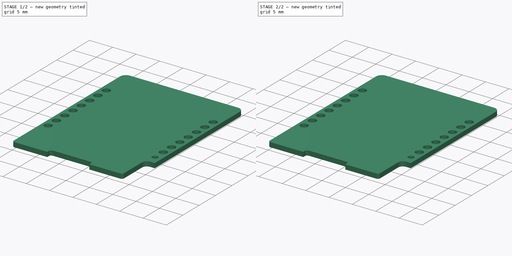
[diagram: build sequence overview — one tinted view per stage of 2, left to right]
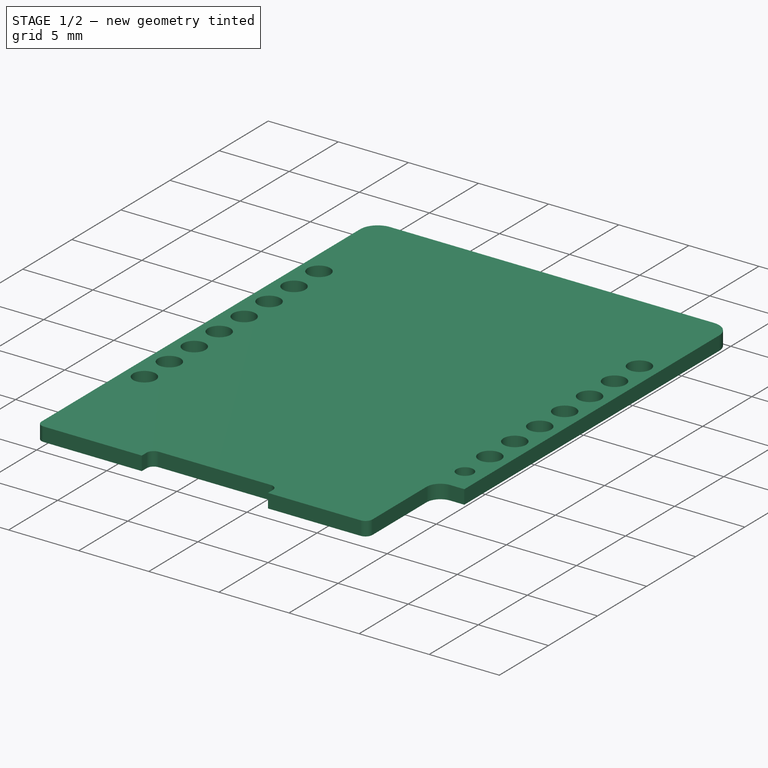
[diagram: stage 1 of 2 — iso view after this stage's code; geometry added in this stage tinted green]
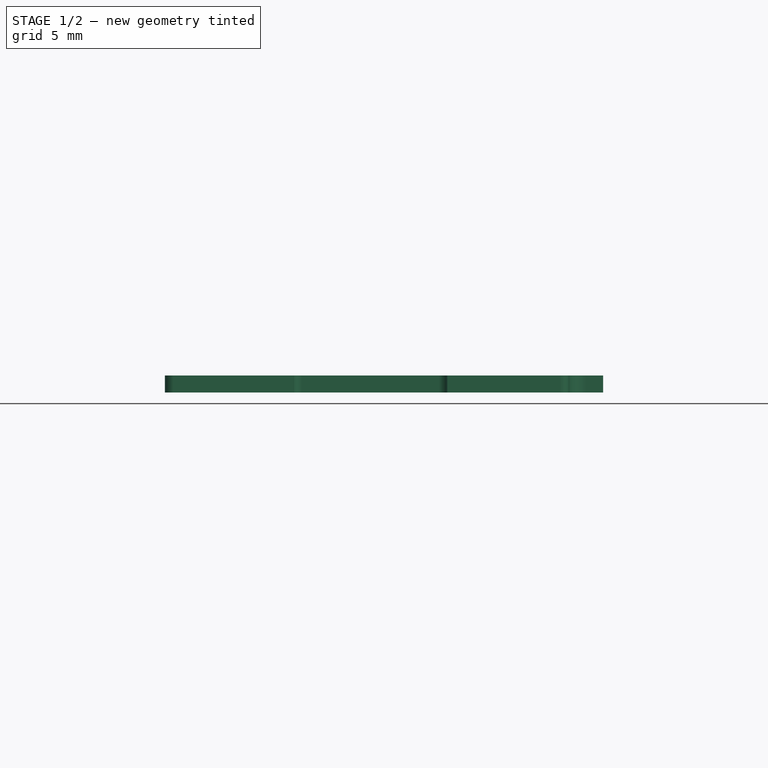
[diagram: stage 1 of 2 — front view after this stage's code; geometry added in this stage tinted green]
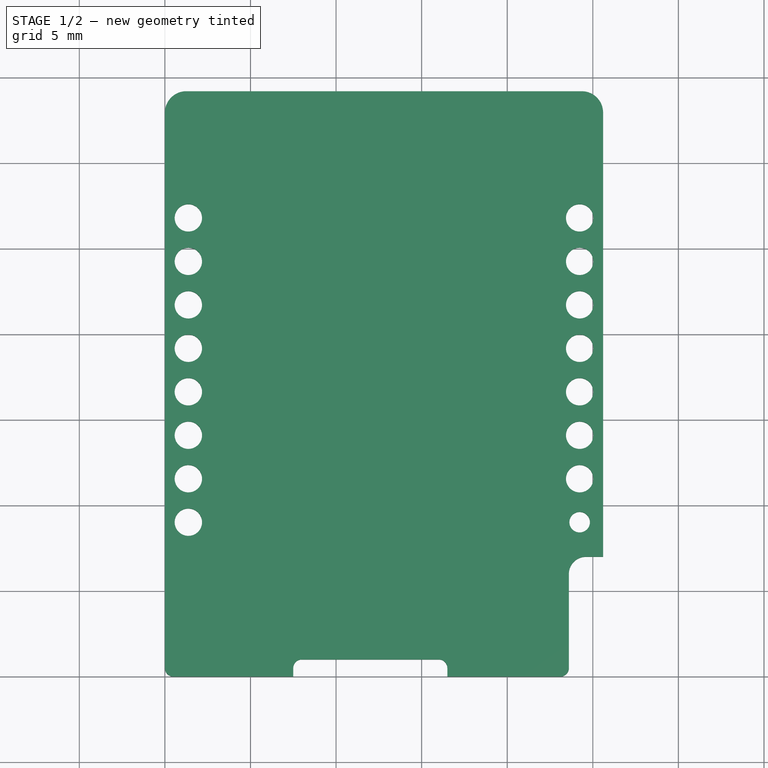
[diagram: stage 1 of 2 — top view after this stage's code; geometry added in this stage tinted green]
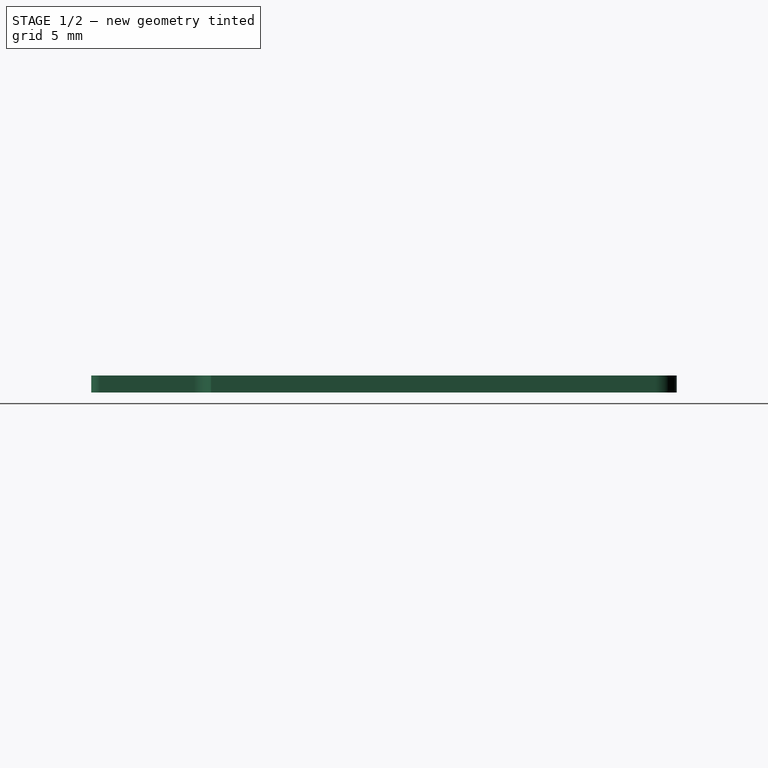
[diagram: stage 1 of 2 — right view after this stage's code; geometry added in this stage tinted green]
FCSTD DOCUMENT  (FreeCAD 1.0R39109 (Git))
Label: D1-BASIC.fcstd
License: All rights reserved
LicenseURL: http://en.wikipedia.org/wiki/All_rights_reserved
objects: Sketcher::SketchObject×2, PartDesign::Pad×2, Part::FeaturePython×1
note: 11 computed .brp shape members not serialized (recipe doc carries the construction recipe); baked Part::Feature solids carry a one-line shape summary decoded from their .brp

FEATURE [Sketcher::SketchObject] Sketch  label="pcb-base"
  ArcFitTolerance = 0
  FullyConstrained = false
  MakeInternals = false
  MapMode = 5
  sketch-geometry (59):
    g0: LineSegment StartX=1.25 StartY=34.2 StartZ=0 EndX=24.35 EndY=34.2 EndZ=0
    g1: LineSegment StartX=25.6 StartY=32.95 StartZ=0 EndX=25.6 EndY=7 EndZ=0
    g2: LineSegment StartX=25.6 StartY=7 StartZ=0 EndX=24.6 EndY=7 EndZ=0
    g3: LineSegment StartX=23.6 StartY=6 StartZ=0 EndX=23.6 EndY=0.5 EndZ=0
    g4: LineSegment StartX=0 StartY=0.5 StartZ=0 EndX=0 EndY=32.95 EndZ=0
    g5: ArcOfCircle CenterX=24.35 CenterY=32.95 CenterZ=0 NormalX=0 NormalY=0 NormalZ=1 AngleXU=0 Radius=1.25 StartAngle=0 EndAngle=1.5708
    g6: ArcOfCircle CenterX=1.25 CenterY=32.95 CenterZ=0 NormalX=0 NormalY=0 NormalZ=1 AngleXU=0 Radius=1.25 StartAngle=1.5708 EndAngle=3.14159
    g7: ArcOfCircle CenterX=0.5 CenterY=0.5 CenterZ=0 NormalX=0 NormalY=0 NormalZ=1 AngleXU=0 Radius=0.5 StartAngle=3.14159 EndAngle=4.71239
    g8: ArcOfCircle CenterX=23.1 CenterY=0.5 CenterZ=0 NormalX=0 NormalY=0 NormalZ=1 AngleXU=0 Radius=0.5 StartAngle=4.71239 EndAngle=6.28319
    g9: ArcOfCircle CenterX=24.6 CenterY=6 CenterZ=0 NormalX=0 NormalY=0 NormalZ=1 AngleXU=0 Radius=1 StartAngle=1.5708 EndAngle=3.14159
    g10: Circle CenterX=1.37 CenterY=26.8 CenterZ=0 NormalX=0 NormalY=0 NormalZ=1 AngleXU=0 Radius=0.8
    g11: LineSegment [constr] StartX=1.37 StartY=26.8 StartZ=0 EndX=0 EndY=26.8 EndZ=0
    g12: Circle CenterX=1.37 CenterY=24.26 CenterZ=0 NormalX=0 NormalY=0 NormalZ=1 AngleXU=0 Radius=0.8
    g13: LineSegment [constr] StartX=1.37 StartY=26.8 StartZ=0 EndX=1.37 EndY=24.26 EndZ=0
    g14: Circle CenterX=1.37 CenterY=21.72 CenterZ=0 NormalX=0 NormalY=0 NormalZ=1 AngleXU=0 Radius=0.8
    g15: LineSegment [constr] StartX=1.37 StartY=24.26 StartZ=0 EndX=1.37 EndY=21.72 EndZ=0
    g16: Circle CenterX=1.37 CenterY=19.18 CenterZ=0 NormalX=0 NormalY=0 NormalZ=1 AngleXU=0 Radius=0.8
    g17: LineSegment [constr] StartX=1.37 StartY=21.72 StartZ=0 EndX=1.37 EndY=19.18 EndZ=0
    g18: Circle CenterX=1.37 CenterY=16.64 CenterZ=0 NormalX=0 NormalY=0 NormalZ=1 AngleXU=0 Radius=0.8
    g19: LineSegment [constr] StartX=1.37 StartY=19.18 StartZ=0 EndX=1.37 EndY=16.64 EndZ=0
    g20: Circle CenterX=1.37 CenterY=14.1 CenterZ=0 NormalX=0 NormalY=0 NormalZ=1 AngleXU=0 Radius=0.8
    g21: LineSegment [constr] StartX=1.37 StartY=16.64 StartZ=0 EndX=1.37 EndY=14.1 EndZ=0
    g22: Circle CenterX=1.37 CenterY=11.56 CenterZ=0 NormalX=0 NormalY=0 NormalZ=1 AngleXU=0 Radius=0.8
    g23: LineSegment [constr] StartX=1.37 StartY=14.1 StartZ=0 EndX=1.37 EndY=11.56 EndZ=0
    g24: Circle CenterX=1.37 CenterY=9.02 CenterZ=0 NormalX=0 NormalY=0 NormalZ=1 AngleXU=0 Radius=0.8
    g25: LineSegment [constr] StartX=1.37 StartY=11.56 StartZ=0 EndX=1.37 EndY=9.02 EndZ=0
    g26: LineSegment StartX=0.5 StartY=0 StartZ=0 EndX=7.5 EndY=0 EndZ=0
    g27: LineSegment StartX=7.5 StartY=0 StartZ=0 EndX=7.5 EndY=0.5 EndZ=0
    g28: LineSegment StartX=16.5 StartY=0.5 StartZ=0 EndX=16.5 EndY=0 EndZ=0
    g29: LineSegment StartX=8 StartY=1 StartZ=0 EndX=16 EndY=1 EndZ=0
    g30: LineSegment StartX=16.5 StartY=0 StartZ=0 EndX=23.1 EndY=0 EndZ=0
    g31: ArcOfCircle CenterX=8 CenterY=0.5 CenterZ=0 NormalX=0 NormalY=0 NormalZ=1 AngleXU=0 Radius=0.5 StartAngle=1.5708 EndAngle=3.14159
    g32: ArcOfCircle CenterX=16 CenterY=0.5 CenterZ=0 NormalX=0 NormalY=0 NormalZ=1 AngleXU=0 Radius=0.5 StartAngle=0 EndAngle=1.5708
    g33: LineSegment [constr] StartX=7.5 StartY=0 StartZ=0 EndX=16.5 EndY=0 EndZ=0
    g34: LineSegment [constr] StartX=23.1 StartY=0.5 StartZ=0 EndX=0.5 EndY=0.5 EndZ=0
    g35: LineSegment [constr] StartX=23.1 StartY=0.5 StartZ=0 EndX=23.1 EndY=0 EndZ=0
    g36: LineSegment [constr] StartX=23.1 StartY=0.5 StartZ=0 EndX=23.6 EndY=0.5 EndZ=0
    g37: LineSegment [constr] StartX=0.5 StartY=0.5 StartZ=0 EndX=0 EndY=0.5 EndZ=0
    g38: LineSegment [constr] StartX=0.5 StartY=0 StartZ=0 EndX=0.5 EndY=0.5 EndZ=0
    g39: Circle CenterX=24.23 CenterY=26.8 CenterZ=0 NormalX=0 NormalY=0 NormalZ=1 AngleXU=0 Radius=0.8
    g40: Circle CenterX=24.23 CenterY=24.26 CenterZ=0 NormalX=0 NormalY=0 NormalZ=1 AngleXU=0 Radius=0.8
    g41: LineSegment [constr] StartX=24.23 StartY=26.8 StartZ=0 EndX=24.23 EndY=24.26 EndZ=0
    g42: Circle CenterX=24.23 CenterY=21.72 CenterZ=0 NormalX=0 NormalY=0 NormalZ=1 AngleXU=0 Radius=0.8
    g43: LineSegment [constr] StartX=24.23 StartY=24.26 StartZ=0 EndX=24.23 EndY=21.72 EndZ=0
    g44: Circle CenterX=24.23 CenterY=19.18 CenterZ=0 NormalX=0 NormalY=0 NormalZ=1 AngleXU=0 Radius=0.8
    g45: LineSegment [constr] StartX=24.23 StartY=21.72 StartZ=0 EndX=24.23 EndY=19.18 EndZ=0
    g46: Circle CenterX=24.23 CenterY=16.64 CenterZ=0 NormalX=0 NormalY=0 NormalZ=1 AngleXU=0 Radius=0.8
    g47: LineSegment [constr] StartX=24.23 StartY=19.18 StartZ=0 EndX=24.23 EndY=16.64 EndZ=0
    g48: Circle CenterX=24.23 CenterY=14.1 CenterZ=0 NormalX=0 NormalY=0 NormalZ=1 AngleXU=0 Radius=0.8
    g49: LineSegment [constr] StartX=24.23 StartY=16.64 StartZ=0 EndX=24.23 EndY=14.1 EndZ=0
    g50: Circle CenterX=24.23 CenterY=11.56 CenterZ=0 NormalX=0 NormalY=0 NormalZ=1 AngleXU=0 Radius=0.8
    g51: LineSegment [constr] StartX=24.23 StartY=14.1 StartZ=0 EndX=24.23 EndY=11.56 EndZ=0
    g52: Circle CenterX=24.23 CenterY=9.02 CenterZ=0 NormalX=0 NormalY=0 NormalZ=1 AngleXU=0 Radius=0.8
    g53: LineSegment [constr] StartX=24.23 StartY=11.56 StartZ=0 EndX=24.23 EndY=9.02 EndZ=0
    g54: LineSegment [constr] StartX=24.23 StartY=26.8 StartZ=0 EndX=24.23 EndY=34.2 EndZ=0
    g55: LineSegment [constr] StartX=24.23 StartY=26.8 StartZ=0 EndX=25.6 EndY=26.8 EndZ=0
    g56: LineSegment [constr] StartX=1.37 StartY=26.8 StartZ=0 EndX=1.37 EndY=34.2 EndZ=0
    g57: LineSegment [constr] StartX=0 StartY=0.5 StartZ=0 EndX=0 EndY=0 EndZ=0
    g58: LineSegment [constr] StartX=0 StartY=0 StartZ=0 EndX=0.5 EndY=0 EndZ=0
  constraints (152):
    c: Horizontal(g0)
    c: Vertical(g1)
    c: Horizontal(g2)
    c: Vertical(g3)
    c: Vertical(g4)
    c: Tangent(g0,g5) = 1.5708
    c: Tangent(g1,g5) = 1.5708
    c: Tangent(g4,g6) = 1.5708
    c: Tangent(g0,g6) = 1.5708
    c: Tangent(g3,g8) = 1.5708
    c: Tangent(g3,g9) = -1.5708
    c: Tangent(g2,g9) = -1.5708
    c: Equal(g5,g6)
    c: DistanceX(g4,g1) = 25.6
    c: Radius(g7) = 0.5
    c: Radius(g5) = 1.25
    c: Coincident(g11,g10)
    c: Horizontal(g11)
    c: DistanceX(g11,g11) = 1.37
    c: Radius(g10) = 0.8
    c: PointOnObject(g11,g4)
    c: Equal(g10,g12) = 0.6
    c: Coincident(g10,g13)
    c: Coincident(g12,g13)
    c: Distance(g13) = 2.54
    c: Angle(g13) = -1.5708
    c: Equal(g10,g14) = 0.6
    c: Coincident(g12,g15)
    c: Coincident(g14,g15)
    c: Equal(g13,g15)
    c: Parallel(g15,g13)
    c: Equal(g10,g16) = 0.6
    c: Coincident(g14,g17)
    c: Coincident(g16,g17)
    c: Equal(g13,g17)
    c: Parallel(g17,g13)
    c: Equal(g10,g18) = 0.6
    c: Coincident(g16,g19)
    c: Coincident(g18,g19)
    c: Equal(g13,g19)
    c: Parallel(g19,g13)
    c: Equal(g10,g20) = 0.6
    c: Coincident(g18,g21)
    c: Coincident(g20,g21)
    c: Equal(g13,g21)
    c: Parallel(g21,g13)
    c: Equal(g10,g22) = 0.6
    c: Coincident(g20,g23)
    c: Coincident(g22,g23)
    c: Equal(g13,g23)
    c: Parallel(g23,g13)
    c: Equal(g10,g24) = 0.6
    c: Coincident(g22,g25)
    c: Coincident(g24,g25)
    c: Equal(g13,g25)
    c: Parallel(g25,g13)
    c: Coincident(g1,g2)
    c: Radius(g9) = 1
    c: Tangent(g7,g26) = -1.5708
    c: Vertical(g27)
    c: Vertical(g28)
    c: Horizontal(g29)
    c: Coincident(g30,g8)
    c: Horizontal(g30)
    c: Tangent(g27,g31) = 1.5708
    c: Tangent(g29,g31) = 1.5708
    c: Tangent(g29,g32) = 1.5708
    c: Tangent(g28,g32) = 1.5708
    c: Horizontal(g26)
    c: Radius(g31) = 0.5
    c: Coincident(g33,g26)
    c: Horizontal(g33)
    c: Coincident(g30,g33)
    c: DistanceX(g27,g28) = 9
    c: DistanceX(g3,g1) = 2
    c: Coincident(g4,g7)
    c: Coincident(g34,g8)
    c: Coincident(g34,g7)
    c: Horizontal(g34)
    c: Coincident(g35,g8)
    c: Coincident(g35,g8)
    c: Coincident(g36,g3)
    c: Horizontal(g36)
    c: Vertical(g35)
    c: Coincident(g37,g7)
    c: Coincident(g37,g4)
    c: Coincident(g38,g7)
    c: Vertical(g38)
    c: Horizontal(g37)
    c: Coincident(g28,g30)
    c: Coincident(g26,g27)
    c: DistanceY(g26,g29) = 1
    c: Coincident(g8,g36)
    c: Equal(g32,g31)
    c: DistanceY(g8,g1) = 7
    c: DistanceY(g7,g0) = 34.2
    c: Coincident(g7,g38)
    c: DistanceY(g10,g0) = 7.4
    c: Radius(g39) = 0.8
    c: Equal(g39,g40) = 0.6
    c: Coincident(g39,g41)
    c: Coincident(g40,g41)
    c: Angle(g41) = -1.5708
    c: Equal(g39,g42) = 0.6
    c: Coincident(g40,g43)
    c: Coincident(g42,g43)
    c: Equal(g41,g43)
    c: Parallel(g43,g41)
    c: Equal(g39,g44) = 0.6
    c: Coincident(g42,g45)
    c: Coincident(g44,g45)
    c: Equal(g41,g45)
    c: Parallel(g45,g41)
    c: Equal(g39,g46) = 0.6
    c: Coincident(g44,g47)
    c: Coincident(g46,g47)
    c: Equal(g41,g47)
    c: Parallel(g47,g41)
    c: Equal(g39,g48) = 0.6
    c: Coincident(g46,g49)
    c: Coincident(g48,g49)
    c: Equal(g41,g49)
    c: Parallel(g49,g41)
    c: Equal(g39,g50) = 0.6
    c: Coincident(g48,g51)
    c: Coincident(g50,g51)
    c: Equal(g41,g51)
    c: Parallel(g51,g41)
    c: Equal(g39,g52) = 0.6
    c: Coincident(g50,g53)
    c: Coincident(g52,g53)
    c: Equal(g41,g53)
    c: Parallel(g53,g41)
    c: Equal(g13,g41)
    c: Coincident(g54,g39)
    c: PointOnObject(g54,g0)
    c: Vertical(g54)
    c: Coincident(g55,g39)
    c: Horizontal(g55)
    c: Coincident(g56,g10)
    c: PointOnObject(g56,g0)
    c: Vertical(g56)
    c: Equal(g54,g56)
    c: Equal(g55,g11)
    c: PointOnObject(g55,g1)
    c: Coincident(g57,g4)
    c: Vertical(g57)
    c: Coincident(g58,g57)
    c: Coincident(g58,g7)
    c: Horizontal(g58)
    c: Coincident(g57,g-1)
    c: DistanceX(g26,g26) = 7
FEATURE [PartDesign::Pad] Pad  label="pcb-bsae"
  AllowMultiFace = false
  Direction = (1,1,1)
  Length = 1
  Length2 = 100
  Profile = -> Sketch
  Suppressed = false
  Type = 0
FEATURE [Sketcher::SketchObject] Sketch003  label="pcb-base001"
  ArcFitTolerance = 0
  FullyConstrained = true
  MakeInternals = false
  MapMode = 5
  sketch-geometry (60):
    g0: Circle CenterX=1.37 CenterY=26.8 CenterZ=0 NormalX=0 NormalY=0 NormalZ=1 AngleXU=0 Radius=0.6
    g1: Circle CenterX=1.37 CenterY=24.26 CenterZ=0 NormalX=0 NormalY=0 NormalZ=1 AngleXU=0 Radius=0.6
    g2: LineSegment [constr] StartX=1.37 StartY=26.8 StartZ=0 EndX=1.37 EndY=24.26 EndZ=0
    g3: Circle CenterX=1.37 CenterY=21.72 CenterZ=0 NormalX=0 NormalY=0 NormalZ=1 AngleXU=0 Radius=0.6
    g4: LineSegment [constr] StartX=1.37 StartY=24.26 StartZ=0 EndX=1.37 EndY=21.72 EndZ=0
    g5: Circle CenterX=1.37 CenterY=19.18 CenterZ=0 NormalX=0 NormalY=0 NormalZ=1 AngleXU=0 Radius=0.6
    g6: LineSegment [constr] StartX=1.37 StartY=21.72 StartZ=0 EndX=1.37 EndY=19.18 EndZ=0
    g7: Circle CenterX=1.37 CenterY=16.64 CenterZ=0 NormalX=0 NormalY=0 NormalZ=1 AngleXU=0 Radius=0.6
    g8: LineSegment [constr] StartX=1.37 StartY=19.18 StartZ=0 EndX=1.37 EndY=16.64 EndZ=0
    g9: Circle CenterX=1.37 CenterY=14.1 CenterZ=0 NormalX=0 NormalY=0 NormalZ=1 AngleXU=0 Radius=0.6
    g10: LineSegment [constr] StartX=1.37 StartY=16.64 StartZ=0 EndX=1.37 EndY=14.1 EndZ=0
    g11: Circle CenterX=1.37 CenterY=11.56 CenterZ=0 NormalX=0 NormalY=0 NormalZ=1 AngleXU=0 Radius=0.6
    g12: LineSegment [constr] StartX=1.37 StartY=14.1 StartZ=0 EndX=1.37 EndY=11.56 EndZ=0
    g13: Circle CenterX=1.37 CenterY=9.02 CenterZ=0 NormalX=0 NormalY=0 NormalZ=1 AngleXU=0 Radius=0.6
    g14: LineSegment [constr] StartX=1.37 StartY=11.56 StartZ=0 EndX=1.37 EndY=9.02 EndZ=0
    g15: Circle CenterX=24.23 CenterY=26.8 CenterZ=0 NormalX=0 NormalY=0 NormalZ=1 AngleXU=0 Radius=0.6
    g16: Circle CenterX=24.23 CenterY=24.26 CenterZ=0 NormalX=0 NormalY=0 NormalZ=1 AngleXU=0 Radius=0.6
    g17: LineSegment [constr] StartX=24.23 StartY=26.8 StartZ=0 EndX=24.23 EndY=24.26 EndZ=0
    g18: Circle CenterX=24.23 CenterY=21.72 CenterZ=0 NormalX=0 NormalY=0 NormalZ=1 AngleXU=0 Radius=0.6
    g19: LineSegment [constr] StartX=24.23 StartY=24.26 StartZ=0 EndX=24.23 EndY=21.72 EndZ=0
    g20: Circle CenterX=24.23 CenterY=19.18 CenterZ=0 NormalX=0 NormalY=0 NormalZ=1 AngleXU=0 Radius=0.6
    g21: LineSegment [constr] StartX=24.23 StartY=21.72 StartZ=0 EndX=24.23 EndY=19.18 EndZ=0
    g22: Circle CenterX=24.23 CenterY=16.64 CenterZ=0 NormalX=0 NormalY=0 NormalZ=1 AngleXU=0 Radius=0.6
    g23: LineSegment [constr] StartX=24.23 StartY=19.18 StartZ=0 EndX=24.23 EndY=16.64 EndZ=0
    g24: Circle CenterX=24.23 CenterY=14.1 CenterZ=0 NormalX=0 NormalY=0 NormalZ=1 AngleXU=0 Radius=0.6
    g25: LineSegment [constr] StartX=24.23 StartY=16.64 StartZ=0 EndX=24.23 EndY=14.1 EndZ=0
    g26: Circle CenterX=24.23 CenterY=11.56 CenterZ=0 NormalX=0 NormalY=0 NormalZ=1 AngleXU=0 Radius=0.6
    g27: LineSegment [constr] StartX=24.23 StartY=14.1 StartZ=0 EndX=24.23 EndY=11.56 EndZ=0
    g28: Circle CenterX=24.23 CenterY=9.02 CenterZ=0 NormalX=0 NormalY=0 NormalZ=1 AngleXU=0 Radius=0.6
    g29: LineSegment [constr] StartX=24.23 StartY=11.56 StartZ=0 EndX=24.23 EndY=9.02 EndZ=0
    g30: Circle CenterX=1.37 CenterY=26.8 CenterZ=0 NormalX=0 NormalY=0 NormalZ=1 AngleXU=0 Radius=0.8
    g31: Circle CenterX=1.37 CenterY=24.26 CenterZ=0 NormalX=0 NormalY=0 NormalZ=1 AngleXU=0 Radius=0.8
    g32: LineSegment [constr] StartX=1.37 StartY=26.8 StartZ=0 EndX=1.37 EndY=24.26 EndZ=0
    g33: Circle CenterX=1.37 CenterY=21.72 CenterZ=0 NormalX=0 NormalY=0 NormalZ=1 AngleXU=0 Radius=0.8
    g34: LineSegment [constr] StartX=1.37 StartY=24.26 StartZ=0 EndX=1.37 EndY=21.72 EndZ=0
    g35: Circle CenterX=1.37 CenterY=19.18 CenterZ=0 NormalX=0 NormalY=0 NormalZ=1 AngleXU=0 Radius=0.8
    g36: LineSegment [constr] StartX=1.37 StartY=21.72 StartZ=0 EndX=1.37 EndY=19.18 EndZ=0
    g37: Circle CenterX=1.37 CenterY=16.64 CenterZ=0 NormalX=0 NormalY=0 NormalZ=1 AngleXU=0 Radius=0.8
    g38: LineSegment [constr] StartX=1.37 StartY=19.18 StartZ=0 EndX=1.37 EndY=16.64 EndZ=0
    g39: Circle CenterX=1.37 CenterY=14.1 CenterZ=0 NormalX=0 NormalY=0 NormalZ=1 AngleXU=0 Radius=0.8
    g40: LineSegment [constr] StartX=1.37 StartY=16.64 StartZ=0 EndX=1.37 EndY=14.1 EndZ=0
    g41: Circle CenterX=1.37 CenterY=11.56 CenterZ=0 NormalX=0 NormalY=0 NormalZ=1 AngleXU=0 Radius=0.8
    g42: LineSegment [constr] StartX=1.37 StartY=14.1 StartZ=0 EndX=1.37 EndY=11.56 EndZ=0
    g43: Circle CenterX=1.37 CenterY=9.02 CenterZ=0 NormalX=0 NormalY=0 NormalZ=1 AngleXU=0 Radius=0.8
    g44: LineSegment [constr] StartX=1.37 StartY=11.56 StartZ=0 EndX=1.37 EndY=9.02 EndZ=0
    g45: Circle CenterX=24.23 CenterY=26.8 CenterZ=0 NormalX=0 NormalY=0 NormalZ=1 AngleXU=0 Radius=0.8
    g46: Circle CenterX=24.23 CenterY=24.26 CenterZ=0 NormalX=0 NormalY=0 NormalZ=1 AngleXU=0 Radius=0.8
    g47: LineSegment [constr] StartX=24.23 StartY=26.8 StartZ=0 EndX=24.23 EndY=24.26 EndZ=0
    g48: Circle CenterX=24.23 CenterY=21.72 CenterZ=0 NormalX=0 NormalY=0 NormalZ=1 AngleXU=0 Radius=0.8
    g49: LineSegment [constr] StartX=24.23 StartY=24.26 StartZ=0 EndX=24.23 EndY=21.72 EndZ=0
    g50: Circle CenterX=24.23 CenterY=19.18 CenterZ=0 NormalX=0 NormalY=0 NormalZ=1 AngleXU=0 Radius=0.8
    g51: LineSegment [constr] StartX=24.23 StartY=21.72 StartZ=0 EndX=24.23 EndY=19.18 EndZ=0
    g52: Circle CenterX=24.23 CenterY=16.64 CenterZ=0 NormalX=0 NormalY=0 NormalZ=1 AngleXU=0 Radius=0.8
    g53: LineSegment [constr] StartX=24.23 StartY=19.18 StartZ=0 EndX=24.23 EndY=16.64 EndZ=0
    g54: Circle CenterX=24.23 CenterY=14.1 CenterZ=0 NormalX=0 NormalY=0 NormalZ=1 AngleXU=0 Radius=0.8
    g55: LineSegment [constr] StartX=24.23 StartY=16.64 StartZ=0 EndX=24.23 EndY=14.1 EndZ=0
    g56: Circle CenterX=24.23 CenterY=11.56 CenterZ=0 NormalX=0 NormalY=0 NormalZ=1 AngleXU=0 Radius=0.8
    g57: LineSegment [constr] StartX=24.23 StartY=14.1 StartZ=0 EndX=24.23 EndY=11.56 EndZ=0
    g58: Circle CenterX=24.23 CenterY=9.02 CenterZ=0 NormalX=0 NormalY=0 NormalZ=1 AngleXU=0 Radius=0.8
    g59: LineSegment [constr] StartX=24.23 StartY=11.56 StartZ=0 EndX=24.23 EndY=9.02 EndZ=0
  constraints (150):
    c: Radius(g0) = 0.6
    c: Equal(g0,g1) = 0.6
    c: Coincident(g0,g2)
    c: Coincident(g1,g2)
    c: Distance(g2) = 2.54
    c: Angle(g2) = -1.5708
    c: Equal(g0,g3) = 0.6
    c: Coincident(g1,g4)
    c: Coincident(g3,g4)
    c: Equal(g2,g4)
    c: Parallel(g4,g2)
    c: Equal(g0,g5) = 0.6
    c: Coincident(g3,g6)
    c: Coincident(g5,g6)
    c: Equal(g2,g6)
    c: Parallel(g6,g2)
    c: Equal(g0,g7) = 0.6
    c: Coincident(g5,g8)
    c: Coincident(g7,g8)
    c: Equal(g2,g8)
    c: Parallel(g8,g2)
    c: Equal(g0,g9) = 0.6
    c: Coincident(g7,g10)
    c: Coincident(g9,g10)
    c: Equal(g2,g10)
    c: Parallel(g10,g2)
    c: Equal(g0,g11) = 0.6
    c: Coincident(g9,g12)
    c: Coincident(g11,g12)
    c: Equal(g2,g12)
    c: Parallel(g12,g2)
    c: Equal(g0,g13) = 0.6
    c: Coincident(g11,g14)
    c: Coincident(g13,g14)
    c: Equal(g2,g14)
    c: Parallel(g14,g2)
    c: Radius(g15) = 0.6
    c: Equal(g15,g16) = 0.6
    c: Coincident(g15,g17)
    c: Coincident(g16,g17)
    c: Angle(g17) = -1.5708
    c: Equal(g15,g18) = 0.6
    c: Coincident(g16,g19)
    c: Coincident(g18,g19)
    c: Equal(g17,g19)
    c: Parallel(g19,g17)
    c: Equal(g15,g20) = 0.6
    c: Coincident(g18,g21)
    c: Coincident(g20,g21)
    c: Equal(g17,g21)
    c: Parallel(g21,g17)
    c: Equal(g15,g22) = 0.6
    c: Coincident(g20,g23)
    c: Coincident(g22,g23)
    c: Equal(g17,g23)
    c: Parallel(g23,g17)
    c: Equal(g15,g24) = 0.6
    c: Coincident(g22,g25)
    c: Coincident(g24,g25)
    c: Equal(g17,g25)
    c: Parallel(g25,g17)
    c: Equal(g15,g26) = 0.6
    c: Coincident(g24,g27)
    c: Coincident(g26,g27)
    c: Equal(g17,g27)
    c: Parallel(g27,g17)
    c: Equal(g15,g28) = 0.6
    c: Coincident(g26,g29)
    c: Coincident(g28,g29)
    c: Equal(g17,g29)
    c: Parallel(g29,g17)
    c: Equal(g2,g17)
    c: DistanceX(g-1,g13) = 1.37
    c: DistanceX(g13,g28) = 22.86
    c: Radius(g30) = 0.8
    c: Equal(g30,g31) = 1.2
    c: Coincident(g30,g32)
    c: Coincident(g31,g32)
    c: Distance(g32) = 2.54
    c: Angle(g32) = -1.5708
    c: Equal(g30,g33) = 1.2
    c: Coincident(g31,g34)
    c: Coincident(g33,g34)
    c: Equal(g32,g34)
    c: Parallel(g34,g32)
    c: Equal(g30,g35) = 1.2
    c: Coincident(g33,g36)
    c: Coincident(g35,g36)
    c: Equal(g32,g36)
    c: Parallel(g36,g32)
    c: Equal(g30,g37) = 1.2
    c: Coincident(g35,g38)
    c: Coincident(g37,g38)
    c: Equal(g32,g38)
    c: Parallel(g38,g32)
    c: Equal(g30,g39) = 1.2
    c: Coincident(g37,g40)
    c: Coincident(g39,g40)
    c: Equal(g32,g40)
    c: Parallel(g40,g32)
    c: Equal(g30,g41) = 1.2
    c: Coincident(g39,g42)
    c: Coincident(g41,g42)
    c: Equal(g32,g42)
    c: Parallel(g42,g32)
    c: Equal(g30,g43) = 1.2
    c: Coincident(g41,g44)
    c: Coincident(g43,g44)
    c: Equal(g32,g44)
    c: Parallel(g44,g32)
    c: DistanceY(g-1,g0) = 26.8
    c: DistanceY(g-1,g15) = 26.8
    c: Coincident(g30,g0)
    c: Radius(g45) = 0.8
    c: Equal(g45,g46) = 0.8
    c: Coincident(g45,g47)
    c: Coincident(g46,g47)
    c: Distance(g47) = 2.54
    c: Angle(g47) = -1.5708
    c: Equal(g45,g48) = 0.8
    c: Coincident(g46,g49)
    c: Coincident(g48,g49)
    c: Equal(g47,g49)
    c: Parallel(g49,g47)
    c: Equal(g45,g50) = 0.8
    c: Coincident(g48,g51)
    c: Coincident(g50,g51)
    c: Equal(g47,g51)
    c: Parallel(g51,g47)
    c: Equal(g45,g52) = 0.8
    c: Coincident(g50,g53)
    c: Coincident(g52,g53)
    c: Equal(g47,g53)
    c: Parallel(g53,g47)
    c: Equal(g45,g54) = 0.8
    c: Coincident(g52,g55)
    c: Coincident(g54,g55)
    c: Equal(g47,g55)
    c: Parallel(g55,g47)
    c: Equal(g45,g56) = 0.8
    c: Coincident(g54,g57)
    c: Coincident(g56,g57)
    c: Equal(g47,g57)
    c: Parallel(g57,g47)
    c: Equal(g45,g58) = 0.8
    c: Coincident(g56,g59)
    c: Coincident(g58,g59)
    c: Equal(g47,g59)
    c: Parallel(g59,g47)
    c: Coincident(g45,g15)
FEATURE [PartDesign::Pad] Pad003
  AllowMultiFace = false
  Direction = (0,0,1)
  Length = 1
  Length2 = 100
  Profile = -> Sketch003
  Suppressed = false
  Type = 0
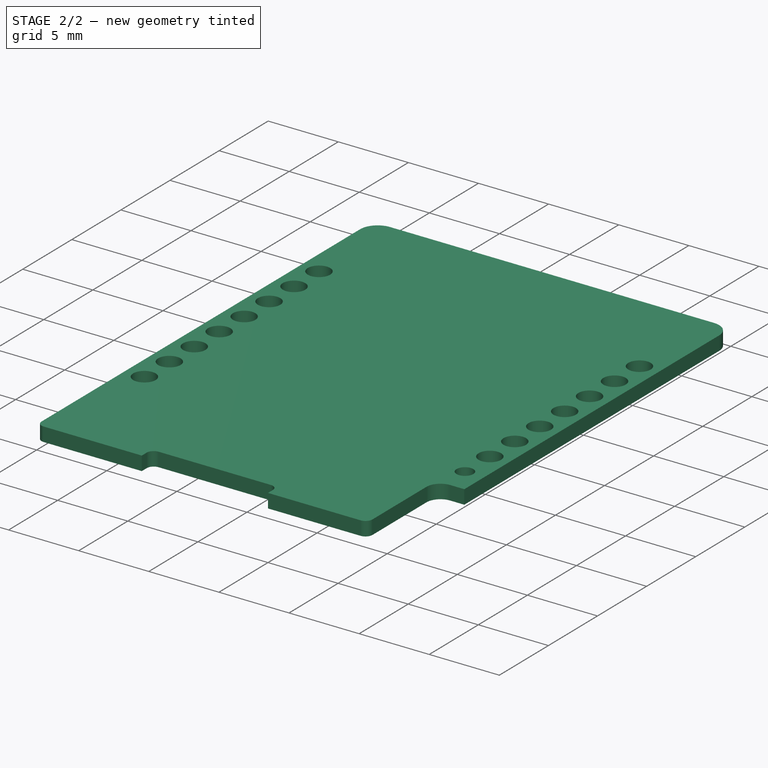
[diagram: stage 2 of 2 — iso view after this stage's code; geometry added in this stage tinted green]
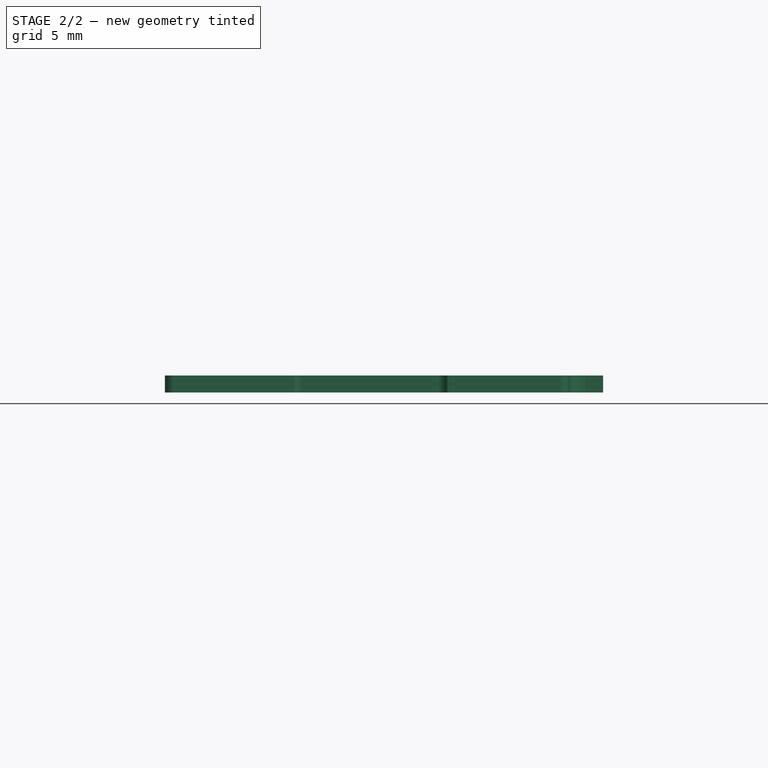
[diagram: stage 2 of 2 — front view after this stage's code; geometry added in this stage tinted green]
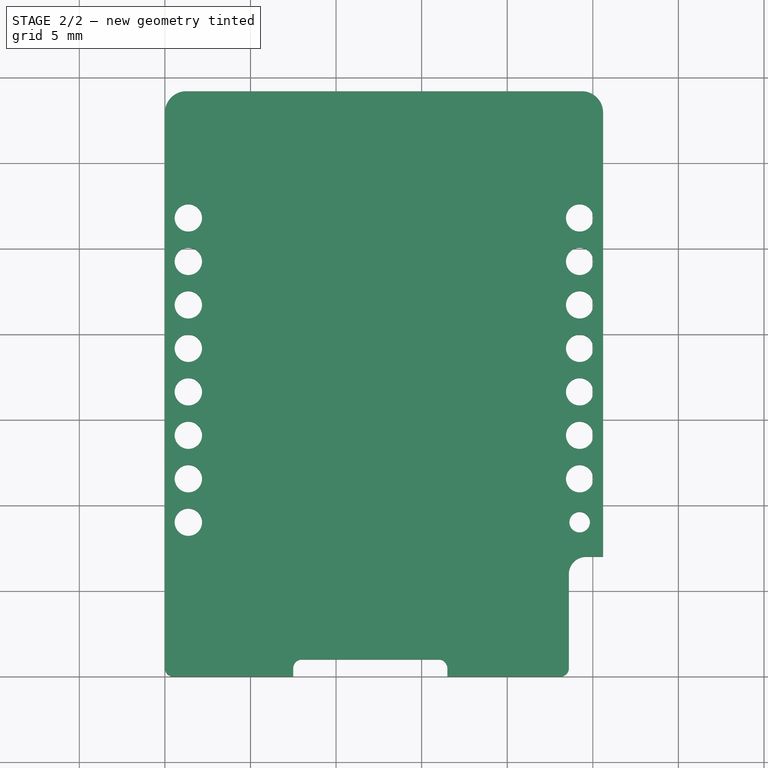
[diagram: stage 2 of 2 — top view after this stage's code; geometry added in this stage tinted green]
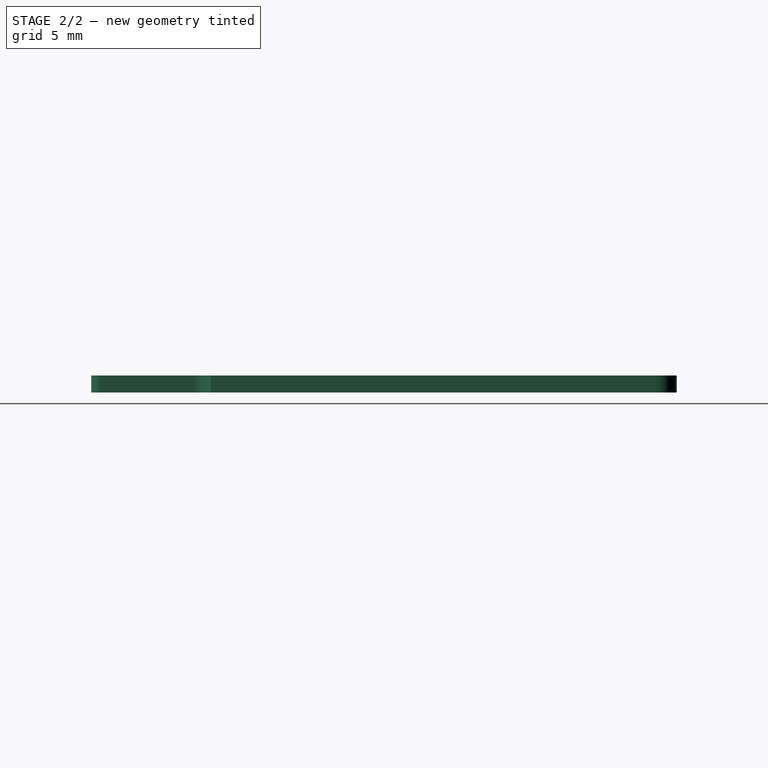
[diagram: stage 2 of 2 — right view after this stage's code; geometry added in this stage tinted green]
FEATURE [Part::FeaturePython] Clone  label="Clone of pcb-bsae"  # Draft clone (typed FeaturePython)
  Objects = -> [Pad]
  Scale = (1,1,1)
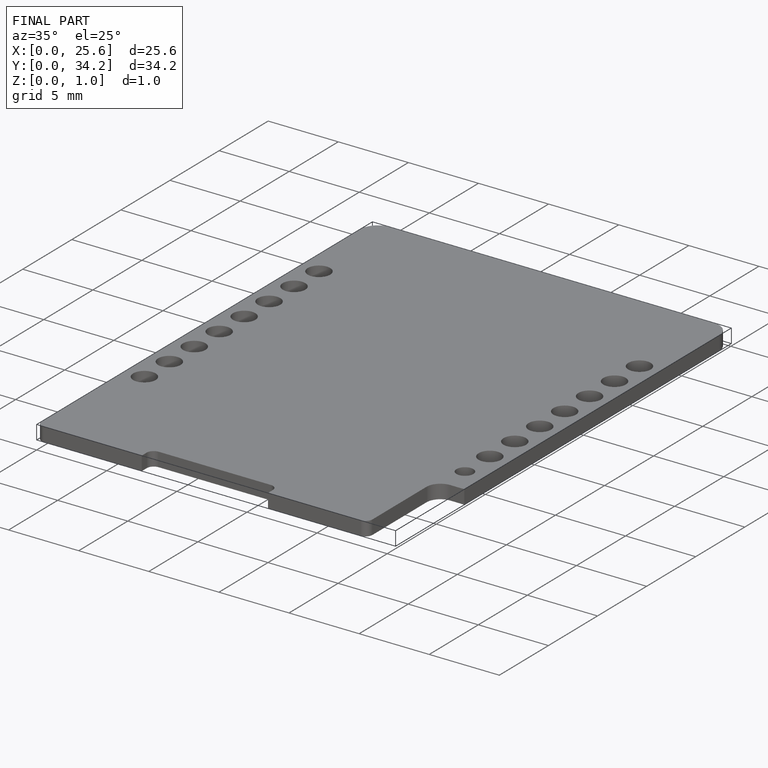
[diagram: finished part — iso view with bounding-box wireframe]
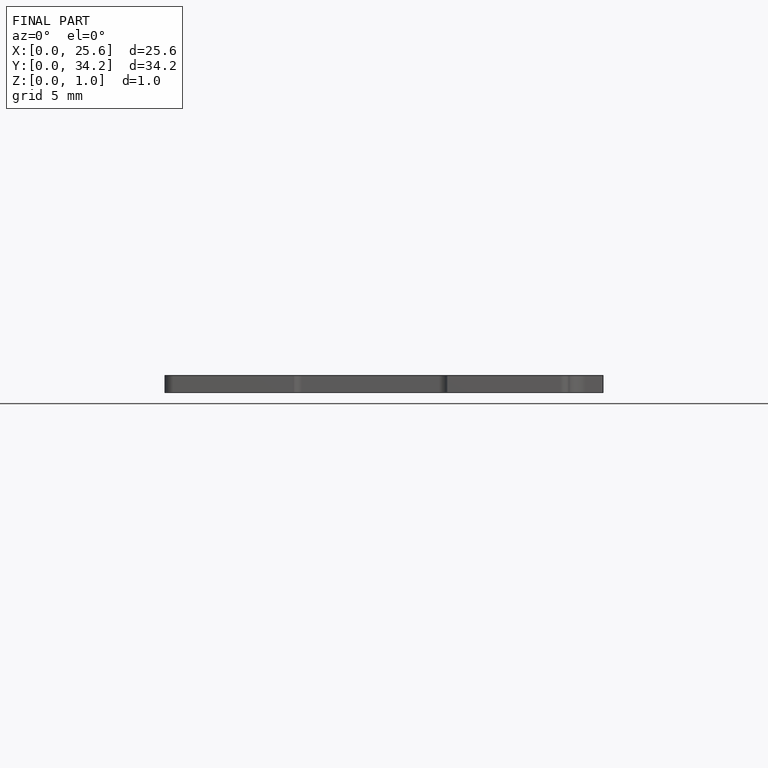
[diagram: finished part — front view with bounding-box wireframe]
